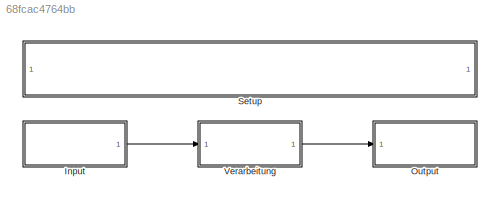
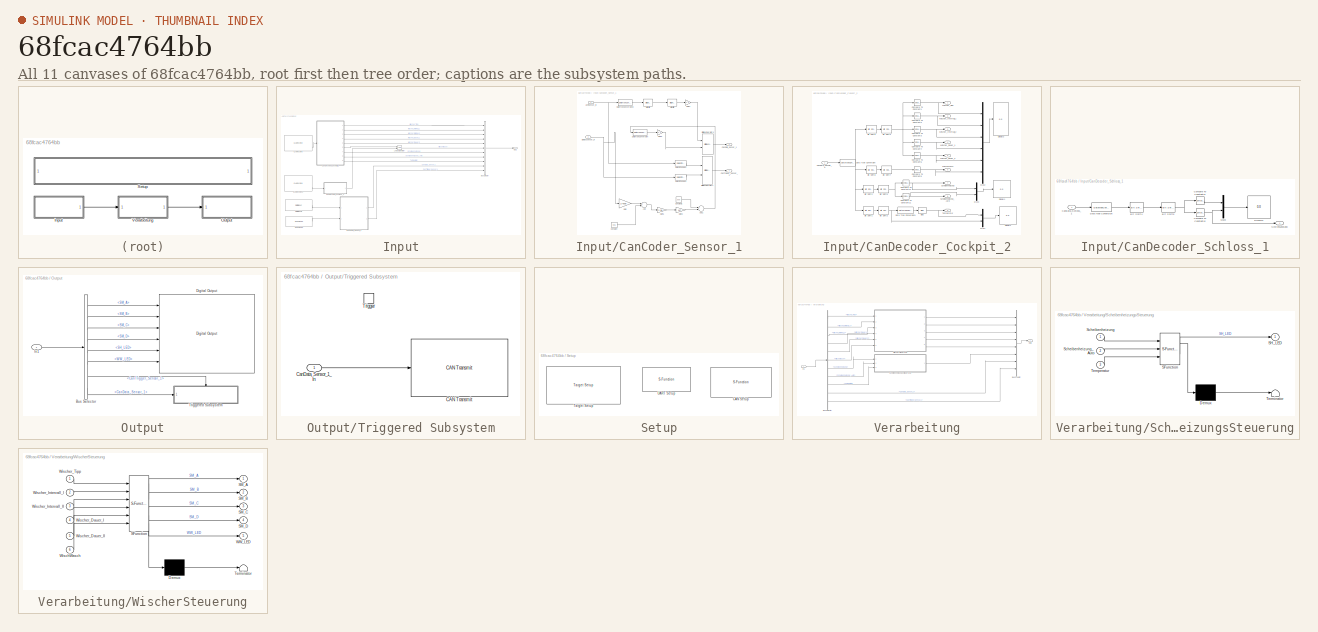
[diagram: thumbnail index - all 11 canvases of the model, root first then tree order]
MODEL slx_68fcac4764bb
KIND model
CONFIG AbsTol = auto
CONFIG EnableMultiTasking = off
CONFIG FixedStep = auto
CONFIG MaxStep = auto
CONFIG MinStep = auto
CONFIG PreLoadFcn = waijung.modelPreload; % Required for working with Waijung Blockset. Do not remove.
CONFIG RelTol = 1e-3
CONFIG SampleTimeConstraint = Unconstrained
CONFIG Solver = FixedStepAuto
CONFIG SolverName = FixedStepAuto
CONFIG StartTime = 0.0
CONFIG StopTime = 10.0
BLOCK [SubSystem] Input
  Ports = [0, 1]
  RequestExecContextInheritance = off
  Variant = off
BLOCK [BusCreator] Input/Bus Creator
  DisplayOption = bar
  InheritFromInputs = on
  Inputs = 11
  Ports = [11, 1]
BLOCK [Reference] Input/CAN Receive  REF=stm32f4_canbus_lib/CAN Receive
  Ports = [0, 3]
  SourceBlock = stm32f4_canbus_lib/CAN Receive
  SourceProductName = Waijung Blockset
  SourceType = stm32f4_can
BLOCK [Reference] Input/CAN Receive1  REF=stm32f4_canbus_lib/CAN Receive
  Ports = [0, 3]
  SourceBlock = stm32f4_canbus_lib/CAN Receive
  SourceProductName = Waijung Blockset
  SourceType = stm32f4_can
BLOCK [SubSystem] Input/CanCoder_Sensor_1
  Ports = [2, 2]
  RequestExecContextInheritance = off
  Variant = off
BLOCK [Sum] Input/CanCoder_Sensor_1/Add
  InputSameDT = off
  Inputs = +-
  OutDataTypeStr = Inherit: Inherit via internal rule
  Ports = [2, 1]
  SaturateOnIntegerOverflow = off
BLOCK [Sum] Input/CanCoder_Sensor_1/Add1
  InputSameDT = off
  Inputs = +-
  OutDataTypeStr = Inherit: Inherit via internal rule
  Ports = [2, 1]
  SaturateOnIntegerOverflow = off
BLOCK [Reference] Input/CanCoder_Sensor_1/Bit Shift4  REF=hdlsllib/Logic and Bit
Operations/Bit Shift
  Ports = [1, 1]
  SourceBlock = hdlsllib/Logic and Bit\nOperations/Bit Shift
  SourceProductBaseCode = HD
  SourceProductName = HDL Coder
  SourceType = Bit Shift
BLOCK [Reference] Input/CanCoder_Sensor_1/Bit Shift5  REF=hdlsllib/Logic and Bit
Operations/Bit Shift
  Ports = [1, 1]
  SourceBlock = hdlsllib/Logic and Bit\nOperations/Bit Shift
  SourceProductBaseCode = HD
  SourceProductName = HDL Coder
  SourceType = Bit Shift
BLOCK [Reference] Input/CanCoder_Sensor_1/Bitwise Operator1  REF=simulink/Logic and Bit
Operations/Bitwise
Operator
  Ports = [2, 1]
  SourceBlock = simulink/Logic and Bit\nOperations/Bitwise\nOperator
  SourceProductBaseCode = SL
  SourceProductName = Simulink
  SourceType = Bitwise Operator
BLOCK [Reference] Input/CanCoder_Sensor_1/Bitwise Operator3  REF=simulink/Logic and Bit
Operations/Bitwise
Operator
  Ports = [2, 1]
  SourceBlock = simulink/Logic and Bit\nOperations/Bitwise\nOperator
  SourceProductBaseCode = SL
  SourceProductName = Simulink
  SourceType = Bitwise Operator
BLOCK [Outport] Input/CanCoder_Sensor_1/CanData_Sensor_1
  IconDisplay = Port number
BLOCK [Outport] Input/CanCoder_Sensor_1/CanTrigger_Sensor_1
  IconDisplay = Port number
  Port = 2
BLOCK [Constant] Input/CanCoder_Sensor_1/Constant
  Value = 0.06
BLOCK [Constant] Input/CanCoder_Sensor_1/Constant1
  Value = 500
BLOCK [DataTypeConversion] Input/CanCoder_Sensor_1/Data Type Conversion
  OutDataTypeStr = uint16
  OutMax = 500
  OutMin = [0]
  RndMeth = Floor
  SaturateOnIntegerOverflow = off
BLOCK [DataTypeConversion] Input/CanCoder_Sensor_1/Data Type Conversion8
  OutDataTypeStr = uint16
  RndMeth = Floor
  SaturateOnIntegerOverflow = off
BLOCK [Reference] Input/CanCoder_Sensor_1/Detect Change3  REF=simulink/Logic and Bit
Operations/Detect
Change
  Ports = [1, 1]
  SourceBlock = simulink/Logic and Bit\nOperations/Detect\nChange
  SourceProductBaseCode = SL
  SourceProductName = Simulink
  SourceType = Detect Change
BLOCK [Reference] Input/CanCoder_Sensor_1/Detect Change4  REF=simulink/Logic and Bit
Operations/Detect
Change
  Ports = [1, 1]
  SourceBlock = simulink/Logic and Bit\nOperations/Detect\nChange
  SourceProductBaseCode = SL
  SourceProductName = Simulink
  SourceType = Detect Change
BLOCK [Inport] Input/CanCoder_Sensor_1/Distanzsensor_In
  IconDisplay = Port number
  Port = 2
BLOCK [Gain] Input/CanCoder_Sensor_1/Gain
  Gain = 1/4095
  OutDataTypeStr = Inherit: Inherit via internal rule
  ParamDataTypeStr = Inherit: Inherit via internal rule
  SaturateOnIntegerOverflow = off
BLOCK [Gain] Input/CanCoder_Sensor_1/Gain1
  Gain = 2.98
  OutDataTypeStr = Inherit: Inherit via internal rule
  ParamDataTypeStr = Inherit: Inherit via internal rule
  SaturateOnIntegerOverflow = off
BLOCK [Gain] Input/CanCoder_Sensor_1/Gain2
  Gain = 167
  OutDataTypeStr = Inherit: Inherit via internal rule
  ParamDataTypeStr = Inherit: Inherit via internal rule
  SaturateOnIntegerOverflow = off
BLOCK [Gain] Input/CanCoder_Sensor_1/Gain4
  Gain = 2^0
  OutDataTypeStr = uint16
  ParamDataTypeStr = Inherit: Inherit via internal rule
  SaturateOnIntegerOverflow = off
BLOCK [Gain] Input/CanCoder_Sensor_1/Gain9
  Gain = 2^1
  OutDataTypeStr = uint16
  ParamDataTypeStr = Inherit: Inherit via internal rule
  SaturateOnIntegerOverflow = off
BLOCK [Inport] Input/CanCoder_Sensor_1/Lichtsensor_In
  IconDisplay = Port number
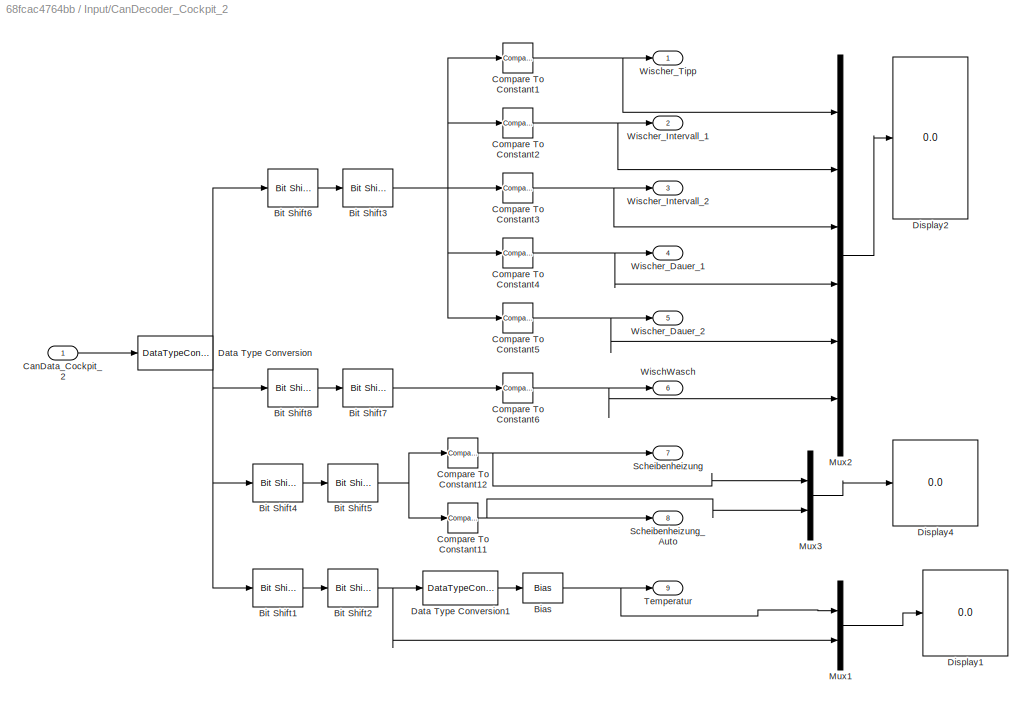
BLOCK [SubSystem] Input/CanDecoder_Cockpit_2
  Ports = [1, 9]
  RequestExecContextInheritance = off
  Variant = off
BLOCK [Bias] Input/CanDecoder_Cockpit_2/Bias
  Bias = -40
  SaturateOnIntegerOverflow = off
BLOCK [Reference] Input/CanDecoder_Cockpit_2/Bit Shift1  REF=hdlsllib/Logic and Bit
Operations/Bit Shift
  Ports = [1, 1]
  SourceBlock = hdlsllib/Logic and Bit\nOperations/Bit Shift
  SourceProductBaseCode = HD
  SourceProductName = HDL Coder
  SourceType = Bit Shift
BLOCK [Reference] Input/CanDecoder_Cockpit_2/Bit Shift2  REF=hdlsllib/Logic and Bit
Operations/Bit Shift
  Ports = [1, 1]
  SourceBlock = hdlsllib/Logic and Bit\nOperations/Bit Shift
  SourceProductBaseCode = HD
  SourceProductName = HDL Coder
  SourceType = Bit Shift
BLOCK [Reference] Input/CanDecoder_Cockpit_2/Bit Shift3  REF=hdlsllib/Logic and Bit
Operations/Bit Shift
  Ports = [1, 1]
  SourceBlock = hdlsllib/Logic and Bit\nOperations/Bit Shift
  SourceProductBaseCode = HD
  SourceProductName = HDL Coder
  SourceType = Bit Shift
BLOCK [Reference] Input/CanDecoder_Cockpit_2/Bit Shift4  REF=hdlsllib/Logic and Bit
Operations/Bit Shift
  Ports = [1, 1]
  SourceBlock = hdlsllib/Logic and Bit\nOperations/Bit Shift
  SourceProductBaseCode = HD
  SourceProductName = HDL Coder
  SourceType = Bit Shift
BLOCK [Reference] Input/CanDecoder_Cockpit_2/Bit Shift5  REF=hdlsllib/Logic and Bit
Operations/Bit Shift
  Ports = [1, 1]
  SourceBlock = hdlsllib/Logic and Bit\nOperations/Bit Shift
  SourceProductBaseCode = HD
  SourceProductName = HDL Coder
  SourceType = Bit Shift
BLOCK [Reference] Input/CanDecoder_Cockpit_2/Bit Shift6  REF=hdlsllib/Logic and Bit
Operations/Bit Shift
  Ports = [1, 1]
  SourceBlock = hdlsllib/Logic and Bit\nOperations/Bit Shift
  SourceProductBaseCode = HD
  SourceProductName = HDL Coder
  SourceType = Bit Shift
BLOCK [Reference] Input/CanDecoder_Cockpit_2/Bit Shift7  REF=hdlsllib/Logic and Bit
Operations/Bit Shift
  Ports = [1, 1]
  SourceBlock = hdlsllib/Logic and Bit\nOperations/Bit Shift
  SourceProductBaseCode = HD
  SourceProductName = HDL Coder
  SourceType = Bit Shift
BLOCK [Reference] Input/CanDecoder_Cockpit_2/Bit Shift8  REF=hdlsllib/Logic and Bit
Operations/Bit Shift
  Ports = [1, 1]
  SourceBlock = hdlsllib/Logic and Bit\nOperations/Bit Shift
  SourceProductBaseCode = HD
  SourceProductName = HDL Coder
  SourceType = Bit Shift
BLOCK [Inport] Input/CanDecoder_Cockpit_2/CanData_Cockpit_2
  IconDisplay = Port number
BLOCK [Reference] Input/CanDecoder_Cockpit_2/Compare To Constant1  REF=simulink/Logic and Bit
Operations/Compare
To Constant
  Ports = [1, 1]
  SourceBlock = simulink/Logic and Bit\nOperations/Compare\nTo Constant
  SourceProductBaseCode = SL
  SourceProductName = Simulink
  SourceType = Compare To Constant
BLOCK [Reference] Input/CanDecoder_Cockpit_2/Compare To Constant11  REF=simulink/Logic and Bit
Operations/Compare
To Constant
  Ports = [1, 1]
  SourceBlock = simulink/Logic and Bit\nOperations/Compare\nTo Constant
  SourceProductBaseCode = SL
  SourceProductName = Simulink
  SourceType = Compare To Constant
BLOCK [Reference] Input/CanDecoder_Cockpit_2/Compare To Constant12  REF=simulink/Logic and Bit
Operations/Compare
To Constant
  Ports = [1, 1]
  SourceBlock = simulink/Logic and Bit\nOperations/Compare\nTo Constant
  SourceProductBaseCode = SL
  SourceProductName = Simulink
  SourceType = Compare To Constant
BLOCK [Reference] Input/CanDecoder_Cockpit_2/Compare To Constant2  REF=simulink/Logic and Bit
Operations/Compare
To Constant
  Ports = [1, 1]
  SourceBlock = simulink/Logic and Bit\nOperations/Compare\nTo Constant
  SourceProductBaseCode = SL
  SourceProductName = Simulink
  SourceType = Compare To Constant
BLOCK [Reference] Input/CanDecoder_Cockpit_2/Compare To Constant3  REF=simulink/Logic and Bit
Operations/Compare
To Constant
  Ports = [1, 1]
  SourceBlock = simulink/Logic and Bit\nOperations/Compare\nTo Constant
  SourceProductBaseCode = SL
  SourceProductName = Simulink
  SourceType = Compare To Constant
BLOCK [Reference] Input/CanDecoder_Cockpit_2/Compare To Constant4  REF=simulink/Logic and Bit
Operations/Compare
To Constant
  Ports = [1, 1]
  SourceBlock = simulink/Logic and Bit\nOperations/Compare\nTo Constant
  SourceProductBaseCode = SL
  SourceProductName = Simulink
  SourceType = Compare To Constant
BLOCK [Reference] Input/CanDecoder_Cockpit_2/Compare To Constant5  REF=simulink/Logic and Bit
Operations/Compare
To Constant
  Ports = [1, 1]
  SourceBlock = simulink/Logic and Bit\nOperations/Compare\nTo Constant
  SourceProductBaseCode = SL
  SourceProductName = Simulink
  SourceType = Compare To Constant
BLOCK [Reference] Input/CanDecoder_Cockpit_2/Compare To Constant6  REF=simulink/Logic and Bit
Operations/Compare
To Constant
  Ports = [1, 1]
  SourceBlock = simulink/Logic and Bit\nOperations/Compare\nTo Constant
  SourceProductBaseCode = SL
  SourceProductName = Simulink
  SourceType = Compare To Constant
BLOCK [DataTypeConversion] Input/CanDecoder_Cockpit_2/Data Type Conversion
  OutDataTypeStr = int16
  RndMeth = Floor
  SaturateOnIntegerOverflow = off
BLOCK [DataTypeConversion] Input/CanDecoder_Cockpit_2/Data Type Conversion1
  OutDataTypeStr = int16
  RndMeth = Floor
  SaturateOnIntegerOverflow = off
BLOCK [Display] Input/CanDecoder_Cockpit_2/Display1
  Decimation = 1
  Format = long
  Ports = [1]
BLOCK [Display] Input/CanDecoder_Cockpit_2/Display2
  Decimation = 1
  Format = long
  Ports = [1]
BLOCK [Display] Input/CanDecoder_Cockpit_2/Display4
  Decimation = 1
  Format = long
  Ports = [1]
BLOCK [Mux] Input/CanDecoder_Cockpit_2/Mux1
  DisplayOption = bar
  Inputs = 2
  Ports = [2, 1]
BLOCK [Mux] Input/CanDecoder_Cockpit_2/Mux2
  DisplayOption = bar
  Inputs = 6
  Ports = [6, 1]
BLOCK [Mux] Input/CanDecoder_Cockpit_2/Mux3
  DisplayOption = bar
  Inputs = 2
  Ports = [2, 1]
BLOCK [Outport] Input/CanDecoder_Cockpit_2/Scheibenheizung
  IconDisplay = Port number
  Port = 7
BLOCK [Outport] Input/CanDecoder_Cockpit_2/Scheibenheizung_Auto
  IconDisplay = Port number
  Port = 8
BLOCK [Outport] Input/CanDecoder_Cockpit_2/Temperatur
  IconDisplay = Port number
  Port = 9
BLOCK [Outport] Input/CanDecoder_Cockpit_2/WischWasch
  IconDisplay = Port number
  Port = 6
BLOCK [Outport] Input/CanDecoder_Cockpit_2/Wischer_Dauer_1
  IconDisplay = Port number
  Port = 4
BLOCK [Outport] Input/CanDecoder_Cockpit_2/Wischer_Dauer_2
  IconDisplay = Port number
  Port = 5
BLOCK [Outport] Input/CanDecoder_Cockpit_2/Wischer_Intervall_1
  IconDisplay = Port number
  Port = 2
BLOCK [Outport] Input/CanDecoder_Cockpit_2/Wischer_Intervall_2
  IconDisplay = Port number
  Port = 3
BLOCK [Outport] Input/CanDecoder_Cockpit_2/Wischer_Tipp
  IconDisplay = Port number
BLOCK [SubSystem] Input/CanDecoder_Schloss_1
  Ports = [1, 1]
  RequestExecContextInheritance = off
  Variant = off
BLOCK [Reference] Input/CanDecoder_Schloss_1/Bit Shift4  REF=hdlsllib/Logic and Bit
Operations/Bit Shift
  Ports = [1, 1]
  SourceBlock = hdlsllib/Logic and Bit\nOperations/Bit Shift
  SourceProductBaseCode = HD
  SourceProductName = HDL Coder
  SourceType = Bit Shift
BLOCK [Reference] Input/CanDecoder_Schloss_1/Bit Shift5  REF=hdlsllib/Logic and Bit
Operations/Bit Shift
  Ports = [1, 1]
  SourceBlock = hdlsllib/Logic and Bit\nOperations/Bit Shift
  SourceProductBaseCode = HD
  SourceProductName = HDL Coder
  SourceType = Bit Shift
BLOCK [Inport] Input/CanDecoder_Schloss_1/CanData_Schloss_1
  IconDisplay = Port number
BLOCK [Reference] Input/CanDecoder_Schloss_1/Compare To Constant11  REF=simulink/Logic and Bit
Operations/Compare
To Constant
  Ports = [1, 1]
  SourceBlock = simulink/Logic and Bit\nOperations/Compare\nTo Constant
  SourceProductBaseCode = SL
  SourceProductName = Simulink
  SourceType = Compare To Constant
BLOCK [Reference] Input/CanDecoder_Schloss_1/Compare To Constant12  REF=simulink/Logic and Bit
Operations/Compare
To Constant
  Ports = [1, 1]
  SourceBlock = simulink/Logic and Bit\nOperations/Compare\nTo Constant
  SourceProductBaseCode = SL
  SourceProductName = Simulink
  SourceType = Compare To Constant
BLOCK [DataTypeConversion] Input/CanDecoder_Schloss_1/Data Type Conversion
  OutDataTypeStr = uint8
  RndMeth = Floor
  SaturateOnIntegerOverflow = off
BLOCK [Display] Input/CanDecoder_Schloss_1/Display4
  Decimation = 1
  Ports = [1]
BLOCK [Mux] Input/CanDecoder_Schloss_1/Mux3
  DisplayOption = bar
  Inputs = 2
  Ports = [2, 1]
BLOCK [Outport] Input/CanDecoder_Schloss_1/SchliessZustand
  IconDisplay = Port number
BLOCK [Reference] Input/Digital Input1  REF=stm32f4_io_lib/Digital Input
  Ports = [0, 1]
  SourceBlock = stm32f4_io_lib/Digital Input
  SourceProductName = Waijung Blockset
  SourceType = stm32f4_digital_input
BLOCK [Logic] Input/Logical Operator
  AllPortsSameDT = off
  OutDataTypeStr = boolean
  Ports = [2, 1]
BLOCK [Outport] Input/Out1
  IconDisplay = Port number
BLOCK [Reference] Input/Regular ADC  REF=stm32f4_adc_lib/Regular ADC
  Ports = [0, 1]
  SourceBlock = stm32f4_adc_lib/Regular ADC
  SourceProductName = Waijung Blockset
  SourceType = stm32f4_regular_adc
BLOCK [SubSystem] Output
  Ports = [1]
  RequestExecContextInheritance = off
  Variant = off
BLOCK [BusSelector] Output/Bus Selector
  OutputAsBus = off
  OutputSignals = SM_A,SM_B,SM_C,SM_D,SH_LED,WW_LED,CanTrigger_Sensor_1,CanData_Sensor_1
  Ports = [1, 8]
BLOCK [Reference] Output/Digital Output  REF=stm32f4_io_lib/Digital Output
  Ports = [6]
  SourceBlock = stm32f4_io_lib/Digital Output
  SourceProductName = Waijung Blockset
  SourceType = stm32f4_digital_output
BLOCK [Inport] Output/In1
  IconDisplay = Port number
BLOCK [SubSystem] Output/Triggered Subsystem
  Ports = [1, 0, 0, 1]
  RequestExecContextInheritance = off
  TreatAsAtomicUnit = on
  Variant = off
BLOCK [Reference] Output/Triggered Subsystem/CAN Transmit  REF=stm32f4_canbus_lib/CAN Transmit
  Ports = [1]
  SourceBlock = stm32f4_canbus_lib/CAN Transmit
  SourceProductName = Waijung Blockset
  SourceType = stm32f4_can
BLOCK [Inport] Output/Triggered Subsystem/CanData_Sensor_1_In
  IconDisplay = Port number
BLOCK [TriggerPort] Output/Triggered Subsystem/Trigger
  Ports = []
  StatesWhenEnabling = held
  VariantControl = Variant
BLOCK [SubSystem] Setup
  Ports = []
  RequestExecContextInheritance = off
  Variant = off
BLOCK [S-Function] Setup/CAN Setup
  EnableBusSupport = off
  FunctionName = stm32f4_can
  Parameters = conf,canmodule,0,inputarray,outputarray,'','',confstr,sampletime,sampletimestr,blockid
  Ports = []
  SFcnIsStateOwnerBlock = off
  SFunctionDeploymentMode = off
BLOCK [Reference] Setup/Target Setup  REF=stm32f4_device_config_lib/Target Setup
  Ports = []
  Priority = 100
  SourceBlock = stm32f4_device_config_lib/Target Setup
  SourceProductName = Waijung Blockset
  SourceType = stm32f4_target_setup
BLOCK [S-Function] Setup/UART Setup
  EnableBusSupport = off
  FunctionName = stm32f4_usart
  Parameters = configuration,uartmodule,transfer,baudrate,inputtype,outputtype,confstr,binheaderarray,binterminatorarray,asciiheader,asciiterminator,bindatalength,packetmode,varname,sampletime,sampletimestr,blockid
  Ports = []
  Priority = 1
  SFcnIsStateOwnerBlock = off
  SFunctionDeploymentMode = off
BLOCK [SubSystem] Verarbeitung
  Ports = [1, 1]
  RequestExecContextInheritance = off
  Variant = off
BLOCK [BusCreator] Verarbeitung/Bus Creator
  DisplayOption = bar
  InheritFromInputs = on
  Inputs = 8
  Ports = [8, 1]
BLOCK [BusSelector] Verarbeitung/Bus Selector
  OutputAsBus = off
  OutputSignals = Wischer_Tipp,Wischer_Intervall_1,Wischer_Intervall_2,Wischer_Dauer_1,Wischer_Dauer_2,WischWasch,Scheibenheizung,Scheibenheizung_Auto,Temperatur,CanData_Sensor_1,CanTrigger_Sensor_1
  Ports = [1, 11]
BLOCK [Inport] Verarbeitung/In1
  IconDisplay = Port number
BLOCK [Outport] Verarbeitung/Out1
  IconDisplay = Port number
BLOCK [SubSystem] Verarbeitung/ScheibenheizungsSteuerung
  ErrorFcn = Stateflow.Translate.translate
  PermitHierarchicalResolution = ExplicitOnly
  Ports = [3, 1]
  RequestExecContextInheritance = off
  SFBlockType = Chart
  TreatAsAtomicUnit = on
  Variant = off
BLOCK [Demux] Verarbeitung/ScheibenheizungsSteuerung/ Demux 
  Outputs = 1
  Ports = [1, 1]
BLOCK [S-Function] Verarbeitung/ScheibenheizungsSteuerung/ SFunction 
  EnableBusSupport = on
  FunctionName = sf_sfun
  PortCounts = [3 2]
  Ports = [3, 2]
  SFcnIsStateOwnerBlock = off
  SFunctionDeploymentMode = off
  Tag = Stateflow S-Function Wischer_Sensor_Box_final 1
BLOCK [Terminator] Verarbeitung/ScheibenheizungsSteuerung/ Terminator 
BLOCK [Outport] Verarbeitung/ScheibenheizungsSteuerung/SH_LED
  IconDisplay = Port number
BLOCK [Inport] Verarbeitung/ScheibenheizungsSteuerung/Scheibenheizung
  IconDisplay = Port number
BLOCK [Inport] Verarbeitung/ScheibenheizungsSteuerung/Scheibenheizung_Auto
  IconDisplay = Port number
  Port = 2
BLOCK [Inport] Verarbeitung/ScheibenheizungsSteuerung/Temperatur
  IconDisplay = Port number
  Port = 3
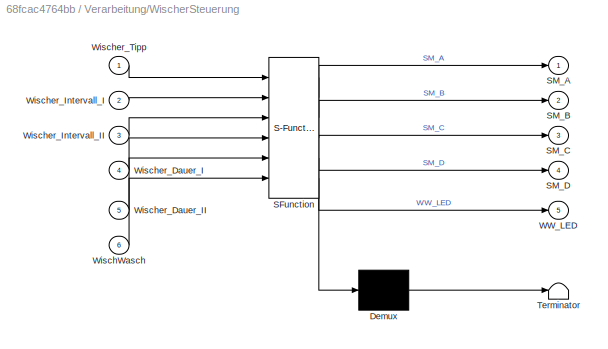
BLOCK [SubSystem] Verarbeitung/WischerSteuerung
  ErrorFcn = Stateflow.Translate.translate
  PermitHierarchicalResolution = ExplicitOnly
  Ports = [6, 5]
  RequestExecContextInheritance = off
  SFBlockType = Chart
  TreatAsAtomicUnit = on
  Variant = off
BLOCK [Demux] Verarbeitung/WischerSteuerung/ Demux 
  Outputs = 1
  Ports = [1, 1]
BLOCK [S-Function] Verarbeitung/WischerSteuerung/ SFunction 
  EnableBusSupport = on
  FunctionName = sf_sfun
  PortCounts = [6 6]
  Ports = [6, 6]
  SFcnIsStateOwnerBlock = off
  SFunctionDeploymentMode = off
  Tag = Stateflow S-Function Wischer_Sensor_Box_final 2
BLOCK [Terminator] Verarbeitung/WischerSteuerung/ Terminator 
BLOCK [Outport] Verarbeitung/WischerSteuerung/SM_A
  IconDisplay = Port number
BLOCK [Outport] Verarbeitung/WischerSteuerung/SM_B
  IconDisplay = Port number
  Port = 2
BLOCK [Outport] Verarbeitung/WischerSteuerung/SM_C
  IconDisplay = Port number
  Port = 3
BLOCK [Outport] Verarbeitung/WischerSteuerung/SM_D
  IconDisplay = Port number
  Port = 4
BLOCK [Outport] Verarbeitung/WischerSteuerung/WW_LED
  IconDisplay = Port number
  Port = 5
BLOCK [Inport] Verarbeitung/WischerSteuerung/WischWasch
  IconDisplay = Port number
  Port = 6
BLOCK [Inport] Verarbeitung/WischerSteuerung/Wischer_Dauer_I
  IconDisplay = Port number
  Port = 4
BLOCK [Inport] Verarbeitung/WischerSteuerung/Wischer_Dauer_II
  IconDisplay = Port number
  Port = 5
BLOCK [Inport] Verarbeitung/WischerSteuerung/Wischer_Intervall_I
  IconDisplay = Port number
  Port = 2
BLOCK [Inport] Verarbeitung/WischerSteuerung/Wischer_Intervall_II
  IconDisplay = Port number
  Port = 3
BLOCK [Inport] Verarbeitung/WischerSteuerung/Wischer_Tipp
  IconDisplay = Port number
LINE Input/Bus Creator:1 -> Input/Out1:1
LINE Input/CAN Receive1:3 -> Input/CanDecoder_Schloss_1:1
LINE Input/CAN Receive:3 -> Input/CanDecoder_Cockpit_2:1
LINE Input/CanCoder_Sensor_1/Add1:1 -> Input/CanCoder_Sensor_1/Data Type Conversion:1
LINE Input/CanCoder_Sensor_1/Add:1 -> Input/CanCoder_Sensor_1/Gain1:1
LINE Input/CanCoder_Sensor_1/Bit Shift4:1 -> Input/CanCoder_Sensor_1/Bit Shift5:1
LINE Input/CanCoder_Sensor_1/Bit Shift5:1 -> Input/CanCoder_Sensor_1/Gain4:1
LINE Input/CanCoder_Sensor_1/Bitwise Operator1:1 -> Input/CanCoder_Sensor_1/CanTrigger_Sensor_1:1
LINE Input/CanCoder_Sensor_1/Bitwise Operator3:1 -> Input/CanCoder_Sensor_1/CanData_Sensor_1:1
LINE Input/CanCoder_Sensor_1/Constant1:1 -> Input/CanCoder_Sensor_1/Add1:1
LINE Input/CanCoder_Sensor_1/Constant:1 -> Input/CanCoder_Sensor_1/Add:2
LINE Input/CanCoder_Sensor_1/Data Type Conversion8:1 -> Input/CanCoder_Sensor_1/Bit Shift4:1
LINE Input/CanCoder_Sensor_1/Data Type Conversion:1 -> Input/CanCoder_Sensor_1/Gain9:1
LINE Input/CanCoder_Sensor_1/Detect Change3:1 -> Input/CanCoder_Sensor_1/Bitwise Operator1:2
LINE Input/CanCoder_Sensor_1/Detect Change4:1 -> Input/CanCoder_Sensor_1/Bitwise Operator1:1
NET Input/CanCoder_Sensor_1/Distanzsensor_In:1 -> Input/CanCoder_Sensor_1/Detect Change3:1, Input/CanCoder_Sensor_1/Gain:1
LINE Input/CanCoder_Sensor_1/Gain1:1 -> Input/CanCoder_Sensor_1/Gain2:1
LINE Input/CanCoder_Sensor_1/Gain2:1 -> Input/CanCoder_Sensor_1/Add1:2
LINE Input/CanCoder_Sensor_1/Gain4:1 -> Input/CanCoder_Sensor_1/Bitwise Operator3:1
LINE Input/CanCoder_Sensor_1/Gain9:1 -> Input/CanCoder_Sensor_1/Bitwise Operator3:2
LINE Input/CanCoder_Sensor_1/Gain:1 -> Input/CanCoder_Sensor_1/Add:1
NET Input/CanCoder_Sensor_1/Lichtsensor_In:1 -> Input/CanCoder_Sensor_1/Data Type Conversion8:1, Input/CanCoder_Sensor_1/Detect Change4:1
LINE Input/CanCoder_Sensor_1:1 -> Input/Bus Creator:10
LINE Input/CanCoder_Sensor_1:2 -> Input/Bus Creator:11
NET Input/CanDecoder_Cockpit_2/Bias:1 -> Input/CanDecoder_Cockpit_2/Mux1:1, Input/CanDecoder_Cockpit_2/Temperatur:1
LINE Input/CanDecoder_Cockpit_2/Bit Shift1:1 -> Input/CanDecoder_Cockpit_2/Bit Shift2:1
NET Input/CanDecoder_Cockpit_2/Bit Shift2:1 -> Input/CanDecoder_Cockpit_2/Data Type Conversion1:1, Input/CanDecoder_Cockpit_2/Mux1:2
NET Input/CanDecoder_Cockpit_2/Bit Shift3:1 -> Input/CanDecoder_Cockpit_2/Compare To Constant1:1, Input/CanDecoder_Cockpit_2/Compare To Constant2:1, Input/CanDecoder_Cockpit_2/Compare To Constant3:1, Input/CanDecoder_Cockpit_2/Compare To Constant4:1, Input/CanDecoder_Cockpit_2/Compare To Constant5:1
LINE Input/CanDecoder_Cockpit_2/Bit Shift4:1 -> Input/CanDecoder_Cockpit_2/Bit Shift5:1
NET Input/CanDecoder_Cockpit_2/Bit Shift5:1 -> Input/CanDecoder_Cockpit_2/Compare To Constant11:1, Input/CanDecoder_Cockpit_2/Compare To Constant12:1
LINE Input/CanDecoder_Cockpit_2/Bit Shift6:1 -> Input/CanDecoder_Cockpit_2/Bit Shift3:1
LINE Input/CanDecoder_Cockpit_2/Bit Shift7:1 -> Input/CanDecoder_Cockpit_2/Compare To Constant6:1
LINE Input/CanDecoder_Cockpit_2/Bit Shift8:1 -> Input/CanDecoder_Cockpit_2/Bit Shift7:1
LINE Input/CanDecoder_Cockpit_2/CanData_Cockpit_2:1 -> Input/CanDecoder_Cockpit_2/Data Type Conversion:1
NET Input/CanDecoder_Cockpit_2/Compare To Constant11:1 -> Input/CanDecoder_Cockpit_2/Mux3:2, Input/CanDecoder_Cockpit_2/Scheibenheizung_Auto:1
NET Input/CanDecoder_Cockpit_2/Compare To Constant12:1 -> Input/CanDecoder_Cockpit_2/Mux3:1, Input/CanDecoder_Cockpit_2/Scheibenheizung:1
NET Input/CanDecoder_Cockpit_2/Compare To Constant1:1 -> Input/CanDecoder_Cockpit_2/Mux2:1, Input/CanDecoder_Cockpit_2/Wischer_Tipp:1
NET Input/CanDecoder_Cockpit_2/Compare To Constant2:1 -> Input/CanDecoder_Cockpit_2/Mux2:2, Input/CanDecoder_Cockpit_2/Wischer_Intervall_1:1
NET Input/CanDecoder_Cockpit_2/Compare To Constant3:1 -> Input/CanDecoder_Cockpit_2/Mux2:3, Input/CanDecoder_Cockpit_2/Wischer_Intervall_2:1
NET Input/CanDecoder_Cockpit_2/Compare To Constant4:1 -> Input/CanDecoder_Cockpit_2/Mux2:4, Input/CanDecoder_Cockpit_2/Wischer_Dauer_1:1
NET Input/CanDecoder_Cockpit_2/Compare To Constant5:1 -> Input/CanDecoder_Cockpit_2/Mux2:5, Input/CanDecoder_Cockpit_2/Wischer_Dauer_2:1
NET Input/CanDecoder_Cockpit_2/Compare To Constant6:1 -> Input/CanDecoder_Cockpit_2/Mux2:6, Input/CanDecoder_Cockpit_2/WischWasch:1
LINE Input/CanDecoder_Cockpit_2/Data Type Conversion1:1 -> Input/CanDecoder_Cockpit_2/Bias:1
NET Input/CanDecoder_Cockpit_2/Data Type Conversion:1 -> Input/CanDecoder_Cockpit_2/Bit Shift1:1, Input/CanDecoder_Cockpit_2/Bit Shift4:1, Input/CanDecoder_Cockpit_2/Bit Shift6:1, Input/CanDecoder_Cockpit_2/Bit Shift8:1
LINE Input/CanDecoder_Cockpit_2/Mux1:1 -> Input/CanDecoder_Cockpit_2/Display1:1
LINE Input/CanDecoder_Cockpit_2/Mux2:1 -> Input/CanDecoder_Cockpit_2/Display2:1
LINE Input/CanDecoder_Cockpit_2/Mux3:1 -> Input/CanDecoder_Cockpit_2/Display4:1
LINE Input/CanDecoder_Cockpit_2:1 -> Input/Bus Creator:1
LINE Input/CanDecoder_Cockpit_2:2 -> Input/Bus Creator:2
LINE Input/CanDecoder_Cockpit_2:3 -> Input/Bus Creator:3
LINE Input/CanDecoder_Cockpit_2:4 -> Input/Bus Creator:4
LINE Input/CanDecoder_Cockpit_2:5 -> Input/Bus Creator:5
LINE Input/CanDecoder_Cockpit_2:6 -> Input/Logical Operator:1
LINE Input/CanDecoder_Cockpit_2:7 -> Input/Bus Creator:7
LINE Input/CanDecoder_Cockpit_2:8 -> Input/Bus Creator:8
LINE Input/CanDecoder_Cockpit_2:9 -> Input/Bus Creator:9
LINE Input/CanDecoder_Schloss_1/Bit Shift4:1 -> Input/CanDecoder_Schloss_1/Bit Shift5:1
NET Input/CanDecoder_Schloss_1/Bit Shift5:1 -> Input/CanDecoder_Schloss_1/Compare To Constant11:1, Input/CanDecoder_Schloss_1/Compare To Constant12:1
LINE Input/CanDecoder_Schloss_1/CanData_Schloss_1:1 -> Input/CanDecoder_Schloss_1/Data Type Conversion:1
LINE Input/CanDecoder_Schloss_1/Compare To Constant11:1 -> Input/CanDecoder_Schloss_1/Mux3:1
NET Input/CanDecoder_Schloss_1/Compare To Constant12:1 -> Input/CanDecoder_Schloss_1/Mux3:2, Input/CanDecoder_Schloss_1/SchliessZustand:1
LINE Input/CanDecoder_Schloss_1/Data Type Conversion:1 -> Input/CanDecoder_Schloss_1/Bit Shift4:1
LINE Input/CanDecoder_Schloss_1/Mux3:1 -> Input/CanDecoder_Schloss_1/Display4:1
LINE Input/CanDecoder_Schloss_1:1 -> Input/Logical Operator:2
LINE Input/Digital Input1:1 -> Input/CanCoder_Sensor_1:1
LINE Input/Logical Operator:1 -> Input/Bus Creator:6
LINE Input/Regular ADC:1 -> Input/CanCoder_Sensor_1:2
LINE Input:1 -> Verarbeitung:1
LINE Output/Bus Selector:1 -> Output/Digital Output:1
LINE Output/Bus Selector:2 -> Output/Digital Output:2
LINE Output/Bus Selector:3 -> Output/Digital Output:3
LINE Output/Bus Selector:4 -> Output/Digital Output:4
LINE Output/Bus Selector:5 -> Output/Digital Output:5
LINE Output/Bus Selector:6 -> Output/Digital Output:6
LINE Output/Bus Selector:7 -> Output/Triggered Subsystem:trigger
LINE Output/Bus Selector:8 -> Output/Triggered Subsystem:1
LINE Output/In1:1 -> Output/Bus Selector:1
LINE Output/Triggered Subsystem/CanData_Sensor_1_In:1 -> Output/Triggered Subsystem/CAN Transmit:1
LINE Verarbeitung/Bus Creator:1 -> Verarbeitung/Out1:1
LINE Verarbeitung/Bus Selector:1 -> Verarbeitung/WischerSteuerung:1
LINE Verarbeitung/Bus Selector:10 -> Verarbeitung/Bus Creator:7
LINE Verarbeitung/Bus Selector:11 -> Verarbeitung/Bus Creator:8
LINE Verarbeitung/Bus Selector:2 -> Verarbeitung/WischerSteuerung:2
LINE Verarbeitung/Bus Selector:3 -> Verarbeitung/WischerSteuerung:3
LINE Verarbeitung/Bus Selector:4 -> Verarbeitung/WischerSteuerung:4
LINE Verarbeitung/Bus Selector:5 -> Verarbeitung/WischerSteuerung:5
LINE Verarbeitung/Bus Selector:6 -> Verarbeitung/WischerSteuerung:6
LINE Verarbeitung/Bus Selector:7 -> Verarbeitung/ScheibenheizungsSteuerung:1
LINE Verarbeitung/Bus Selector:8 -> Verarbeitung/ScheibenheizungsSteuerung:2
LINE Verarbeitung/Bus Selector:9 -> Verarbeitung/ScheibenheizungsSteuerung:3
LINE Verarbeitung/In1:1 -> Verarbeitung/Bus Selector:1
LINE Verarbeitung/ScheibenheizungsSteuerung:1 -> Verarbeitung/Bus Creator:6
LINE Verarbeitung/WischerSteuerung:1 -> Verarbeitung/Bus Creator:1
LINE Verarbeitung/WischerSteuerung:2 -> Verarbeitung/Bus Creator:2
LINE Verarbeitung/WischerSteuerung:3 -> Verarbeitung/Bus Creator:3
LINE Verarbeitung/WischerSteuerung:4 -> Verarbeitung/Bus Creator:4
LINE Verarbeitung/WischerSteuerung:5 -> Verarbeitung/Bus Creator:5
LINE Verarbeitung:1 -> Output:1
note: NET lines group one-source signal fan-out (src -> all destinations, sorted); 1:1 wires keep LINE
CHART Verarbeitung/ScheibenheizungsSteuerung states=6 transitions=9
  STATE_LABEL 'MANUELL'
  STATE_LABEL 'ON\nentry:SH_LED=true'
  STATE_LABEL 'OFF\nentry:SH_LED=false'
  STATE_LABEL '[after(30,sec) || Scheibenheizung==0]'
  STATE_LABEL '[Scheibenheizung==1]'
  STATE_LABEL 'ON\nentry:SH_LED=true'
  STATE_LABEL 'OFF\nentry:SH_LED=false'
  STATE_LABEL 'AUTO'
  STATE_LABEL 'ON\nentry:SH_LED=true'
  STATE_LABEL 'OFF\nentry:SH_LED=false'
  STATE_LABEL '[after(30,sec) || Temperatur>=2]'
  STATE_LABEL '[Temperatur<2]'
  STATE_LABEL 'ON\nentry:SH_LED=true'
  STATE_LABEL 'OFF\nentry:SH_LED=false'
CHART Verarbeitung/WischerSteuerung states=30 transitions=40
  STATE_LABEL 'Wischer1'
  STATE_LABEL 'Stufe_0_\nentry:\nSM_A=false\nSM_B=false\nSM_C=false\nSM_D=false\nWW_LED=false\nSteps=0\nWischWaschCount=0\n'
  STATE_LABEL 'Wischer_Vor'
  STATE_LABEL 'Phase4\nentry:\nSM_A=false\nSM_B=false\nSM_C=false\nSM_D=true\nWW_LED=false\nSteps = Steps + 1;\n'
  STATE_LABEL 'Phase1\nentry:\nSM_A=true\nSM_B=false\nSM_C=false\nSM_D=false\nWW_LED=false\nSteps = Steps + 1;'
  STATE_LABEL 'Phase2\nentry:\nSM_A=false\nSM_B=true\nSM_C=false\nSM_D=false\nWW_LED=false\nSteps = Steps + 1;\n'
  STATE_LABEL 'Phase3\nentry:\nSM_A=false\nSM_B=false\nSM_C=true\nSM_D=false\nWW_LED=false\nSteps = Steps + 1;'
  STATE_LABEL 'after(StepTime,sec)'
  STATE_LABEL 'after(StepTime,sec)'
  STATE_LABEL 'after(StepTime,sec)'
  STATE_LABEL 'after(StepTime,sec)'
  STATE_LABEL 'TIPP\nentry: StepTime=0.0303;\n StepTime1=1;\n BreakTime=1;\n'
  STATE_LABEL 'INTERVALL_LANGSAM\nentry: StepTime=0.0303;\n StepTime1=1;\n BreakTime=4;\n'
  STATE_LABEL 'INTERVALL_LANGSAM1\nentry: StepTime=0.0303;\n StepTime1=1;\n BreakTime=2;\n'
  STATE_LABEL 'INTERVALL_LANGSAM2\nentry: StepTime=0.0303;\n StepTime1=1;\n BreakTime=0;\n'
  STATE_LABEL 'INTERVALL_LANGSAM3\nentry: StepTime=0.015015;\n StepTime1=0.5;\n BreakTime=0;\n'
  STATE_LABEL 'WEIL_ICH_DUMM_BIN'
  STATE_LABEL 'Wischer_Rueck'
  STATE_LABEL 'Phase4\nentry:\nSM_A=false\nSM_B=false\nSM_C=false\nSM_D=true\nWW_LED=false\nSteps = Steps - 1;\n'
  STATE_LABEL 'Phase1\nentry:\nSM_A=true\nSM_B=false\nSM_C=false\nSM_D=false\nWW_LED=false\nSteps = Steps -1;'
  STATE_LABEL 'Phase2\nentry:\nSM_A=false\nSM_B=true\nSM_C=false\nSM_D=false\nWW_LED=false\nSteps = Steps - 1;\n'
  STATE_LABEL 'Phase3\nentry:\nSM_A=false\nSM_B=false\nSM_C=true\nSM_D=false\nWW_LED=false\nSteps = Steps - 1;'
  STATE_LABEL 'after(StepTime,sec)'
  STATE_LABEL 'after(StepTime,sec)'
  STATE_LABEL 'after(StepTime,sec)'
  STATE_LABEL 'after(StepTime,sec)'
  STATE_LABEL '[Wischer_Tipp==1]'
  STATE_LABEL '[Wischer_Intervall_I==1]'
  STATE_LABEL '[Wischer_Intervall_II==1]'
  STATE_LABEL '[Wischer_Dauer_I==1]'
  STATE_LABEL '[Wischer_Dauer_II==1]'
  STATE_LABEL 'after(BreakTime,sec)'
  STATE_LABEL '[Steps==0]'
  STATE_LABEL '[Steps==23]'
  STATE_LABEL 'Stufe_0_\nentry:\nSM_A=false\nSM_B=false\nSM_C=false\nSM_D=false\nWW_LED=false\nSteps=0\nWischWaschCount=0\n'
  STATE_LABEL 'Wischer_Vor'
  STATE_LABEL 'Phase4\nentry:\nSM_A=false\nSM_B=false\nSM_C=false\nSM_D=true\nWW_LED=false\nSteps = Steps + 1;\n'
  STATE_LABEL 'Phase1\nentry:\nSM_A=true\nSM_B=false\nSM_C=false\nSM_D=false\nWW_LED=false\nSteps = Steps + 1;'
  STATE_LABEL 'Phase2\nentry:\nSM_A=false\nSM_B=true\nSM_C=false\nSM_D=false\nWW_LED=false\nSteps = Steps + 1;\n'
  STATE_LABEL 'Phase3\nentry:\nSM_A=false\nSM_B=false\nSM_C=true\nSM_D=false\nWW_LED=false\nSteps = Steps + 1;'
